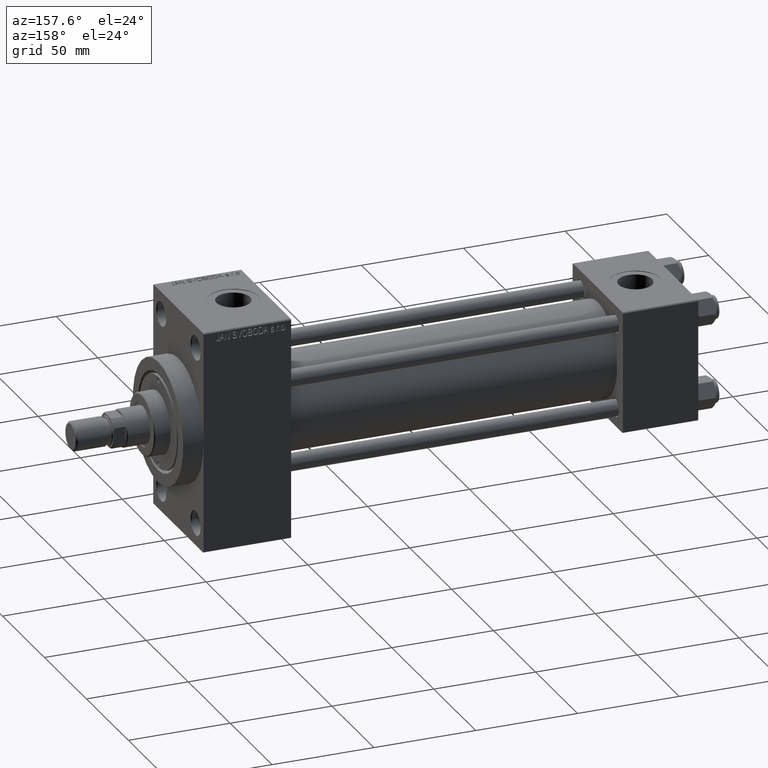
[diagram: clean part render]
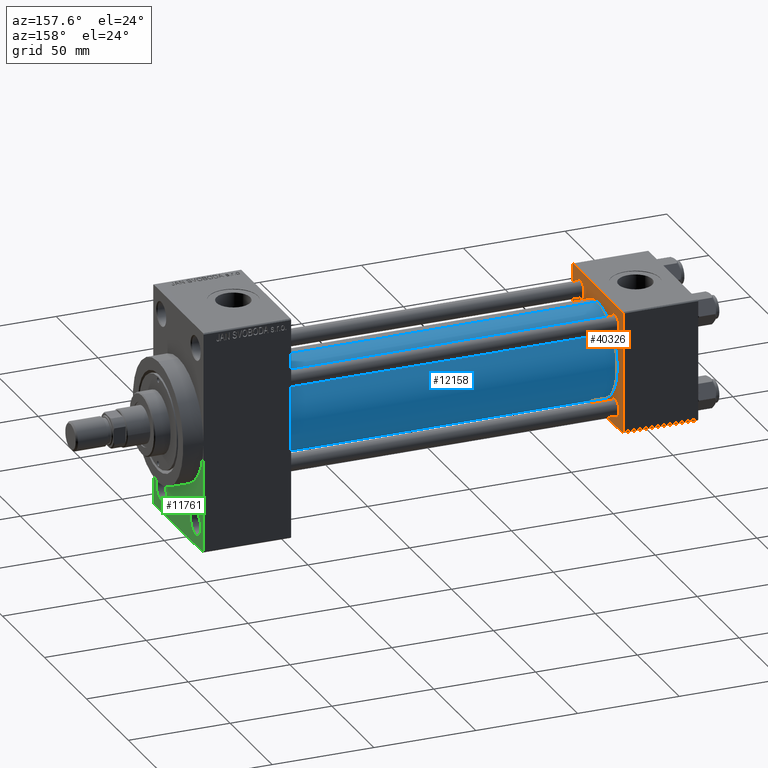
[diagram: same view with three faces highlighted in distinct colors, each labeled with its STEP entity id]
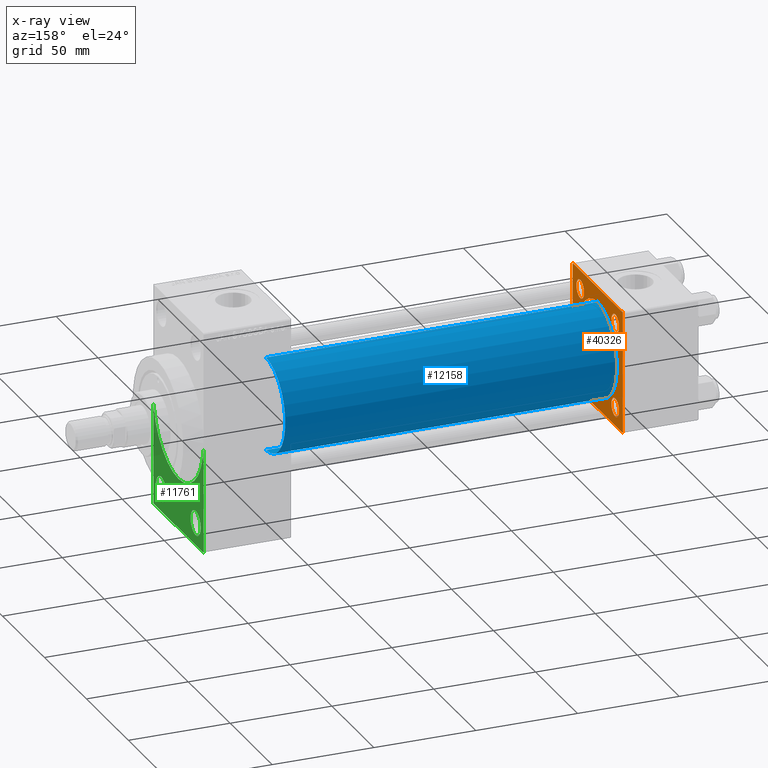
[diagram: x-ray of the same camera — body ghosted, the three highlighted faces saturated]
A machine part, auxiliary view with three faces highlighted in distinct colors.
The next image is the same camera in x-ray (body ghosted, the three faces saturated) — at least one of them is partly hidden behind the body in this view.
Their STEP definitions:

[orange] entity #40326 — the highlighted planar face has unit normal (-1, 0, 0).
#226 = VERTEX_POINT ( 'NONE', #12615 ) ;
#628 = DIRECTION ( 'NONE',  ( -1.000000000000000000, 0.000000000000000000, -0.000000000000000000 ) ) ;
#762 = CIRCLE ( 'NONE', #30923, 4.500000000000031974 ) ;
#1553 = EDGE_CURVE ( 'NONE', #35813, #36327, #17889, .T. ) ;
#1852 = VERTEX_POINT ( 'NONE', #34324 ) ;
#2105 = CARTESIAN_POINT ( 'NONE',  ( 37.00000000000000000, 29.99999999999999289, 30.00000000000000000 ) ) ;
#2478 = VECTOR ( 'NONE', #25453, 1000.000000000000000 ) ;
#3282 = EDGE_LOOP ( 'NONE', ( #15802, #40644 ) ) ;
#3363 = DIRECTION ( 'NONE',  ( 0.000000000000000000, 0.000000000000000000, -1.000000000000000000 ) ) ;
#3420 = CARTESIAN_POINT ( 'NONE',  ( 37.00000000000000711, -2.602085213965210642E-15, 0.000000000000000000 ) ) ;
#3861 = CARTESIAN_POINT ( 'NONE',  ( 37.00000000000000000, -30.00000000000000000, 29.99999999999999289 ) ) ;
#4104 = CARTESIAN_POINT ( 'NONE',  ( 37.00000000000000711, -2.602085213965210642E-15, 0.000000000000000000 ) ) ;
#4171 = ORIENTED_EDGE ( 'NONE', *, *, #21640, .T. ) ;
#4271 = FACE_BOUND ( 'NONE', #25519, .T. ) ;
#4456 = VERTEX_POINT ( 'NONE', #46131 ) ;
#4826 = EDGE_CURVE ( 'NONE', #33932, #15929, #13238, .T. ) ;
#5232 = EDGE_CURVE ( 'NONE', #37272, #1852, #21779, .T. ) ;
#5338 = CARTESIAN_POINT ( 'NONE',  ( 37.00000000000000000, 20.84999999999999787, -20.85000000000000142 ) ) ;
#5989 = CIRCLE ( 'NONE', #19928, 4.500000000000031974 ) ;
#6295 = DIRECTION ( 'NONE',  ( 0.000000000000000000, 0.000000000000000000, 1.000000000000000000 ) ) ;
#6924 = DIRECTION ( 'NONE',  ( 0.000000000000000000, -0.7071067811865474617, 0.7071067811865474617 ) ) ;
#7434 = DIRECTION ( 'NONE',  ( -1.000000000000000000, 0.000000000000000000, -0.000000000000000000 ) ) ;
#7546 = CARTESIAN_POINT ( 'NONE',  ( 37.00000000000000000, -30.00000000000000000, 29.49999999999999289 ) ) ;
#7735 = DIRECTION ( 'NONE',  ( 0.000000000000000000, 0.000000000000000000, 1.000000000000000000 ) ) ;
#7875 = CARTESIAN_POINT ( 'NONE',  ( 37.00000000000000000, 20.84999999999999787, -16.34999999999996945 ) ) ;
#7970 = ORIENTED_EDGE ( 'NONE', *, *, #47088, .T. ) ;
#8579 = DIRECTION ( 'NONE',  ( -1.000000000000000000, 0.000000000000000000, -0.000000000000000000 ) ) ;
#8581 = VECTOR ( 'NONE', #45571, 999.9999999999998863 ) ;
#8600 = ORIENTED_EDGE ( 'NONE', *, *, #5232, .F. ) ;
#9486 = CARTESIAN_POINT ( 'NONE',  ( 37.00000000000000000, 20.84999999999999787, -25.35000000000003340 ) ) ;
#10013 = EDGE_LOOP ( 'NONE', ( #31865, #24260, #8600, #20482, #16755, #36763, #22285, #19184 ) ) ;
#10676 = EDGE_CURVE ( 'NONE', #15780, #29314, #43568, .T. ) ;
#11189 = CARTESIAN_POINT ( 'NONE',  ( 37.00000000000000000, -30.00000000000000000, 29.49999999999999289 ) ) ;
#11269 = CARTESIAN_POINT ( 'NONE',  ( 37.00000000000000000, 29.49999999999999289, 30.00000000000000000 ) ) ;
#11770 = FACE_BOUND ( 'NONE', #3282, .T. ) ;
#11812 = CARTESIAN_POINT ( 'NONE',  ( 37.00000000000000000, 20.84999999999999787, 16.34999999999996945 ) ) ;
#12615 = CARTESIAN_POINT ( 'NONE',  ( 37.00000000000000000, -20.84999999999999076, 16.34999999999997300 ) ) ;
#12697 = ORIENTED_EDGE ( 'NONE', *, *, #43193, .T. ) ;
#12814 = VERTEX_POINT ( 'NONE', #38172 ) ;
#13238 = CIRCLE ( 'NONE', #14777, 23.00000000000000000 ) ;
#13991 = FACE_BOUND ( 'NONE', #24840, .T. ) ;
#14118 = DIRECTION ( 'NONE',  ( 0.000000000000000000, 0.000000000000000000, 1.000000000000000000 ) ) ;
#14196 = CARTESIAN_POINT ( 'NONE',  ( 37.00000000000000711, 2.146024240737016609E-16, -23.00000000000000000 ) ) ;
#14773 = LINE ( 'NONE', #3861, #2478 ) ;
#14777 = AXIS2_PLACEMENT_3D ( 'NONE', #3420, #21833, #18208 ) ;
#15176 = FACE_OUTER_BOUND ( 'NONE', #10013, .T. ) ;
#15642 = DIRECTION ( 'NONE',  ( -1.000000000000000000, 0.000000000000000000, -0.000000000000000000 ) ) ;
#15780 = VERTEX_POINT ( 'NONE', #16398 ) ;
#15802 = ORIENTED_EDGE ( 'NONE', *, *, #4826, .F. ) ;
#15929 = VERTEX_POINT ( 'NONE', #14196 ) ;
#16029 = VERTEX_POINT ( 'NONE', #11269 ) ;
#16232 = CARTESIAN_POINT ( 'NONE',  ( 37.00000000000000000, 20.84999999999999787, 20.85000000000000142 ) ) ;
#16398 = CARTESIAN_POINT ( 'NONE',  ( 37.00000000000000000, 20.84999999999999787, 25.35000000000003340 ) ) ;
#16409 = LINE ( 'NONE', #2105, #27542 ) ;
#16538 = LINE ( 'NONE', #31307, #38328 ) ;
#16587 = CARTESIAN_POINT ( 'NONE',  ( 37.00000000000000711, -2.602085213965210642E-15, 23.00000000000000000 ) ) ;
#16623 = AXIS2_PLACEMENT_3D ( 'NONE', #5338, #27641, #6295 ) ;
#16755 = ORIENTED_EDGE ( 'NONE', *, *, #33703, .T. ) ;
#17388 = CIRCLE ( 'NONE', #16623, 4.500000000000031974 ) ;
#17395 = CARTESIAN_POINT ( 'NONE',  ( 37.00000000000000000, -29.50000000000000000, -30.00000000000000711 ) ) ;
#17757 = CARTESIAN_POINT ( 'NONE',  ( 37.00000000000000000, 20.84999999999999787, -20.85000000000000142 ) ) ;
#17801 = CIRCLE ( 'NONE', #34024, 4.500000000000031974 ) ;
#17832 = VERTEX_POINT ( 'NONE', #17395 ) ;
#17889 = CIRCLE ( 'NONE', #39558, 4.500000000000031974 ) ;
#18155 = CARTESIAN_POINT ( 'NONE',  ( 37.00000000000000000, -30.00000000000000000, -29.50000000000001776 ) ) ;
#18208 = DIRECTION ( 'NONE',  ( 0.000000000000000000, 0.000000000000000000, 1.000000000000000000 ) ) ;
#18468 = EDGE_CURVE ( 'NONE', #39163, #1852, #26933, .T. ) ;
#19051 = PLANE ( 'NONE',  #36939 ) ;
#19184 = ORIENTED_EDGE ( 'NONE', *, *, #31793, .T. ) ;
#19308 = VECTOR ( 'NONE', #43959, 1000.000000000000000 ) ;
#19420 = EDGE_CURVE ( 'NONE', #12814, #31988, #44835, .T. ) ;
#19928 = AXIS2_PLACEMENT_3D ( 'NONE', #46496, #36314, #39951 ) ;
#20482 = ORIENTED_EDGE ( 'NONE', *, *, #44450, .T. ) ;
#20577 = EDGE_CURVE ( 'NONE', #31988, #26696, #14773, .T. ) ;
#20636 = EDGE_CURVE ( 'NONE', #15929, #33932, #31091, .T. ) ;
#20673 = CARTESIAN_POINT ( 'NONE',  ( 37.00000000000000000, -20.84999999999999076, -16.34999999999997300 ) ) ;
#21073 = CIRCLE ( 'NONE', #24189, 4.500000000000031974 ) ;
#21188 = ORIENTED_EDGE ( 'NONE', *, *, #27659, .T. ) ;
#21640 = EDGE_CURVE ( 'NONE', #29314, #15780, #21073, .T. ) ;
#21779 = LINE ( 'NONE', #36551, #23306 ) ;
#21833 = DIRECTION ( 'NONE',  ( 1.000000000000000000, -0.000000000000000000, 0.000000000000000000 ) ) ;
#22036 = DIRECTION ( 'NONE',  ( 0.000000000000000000, 0.000000000000000000, 1.000000000000000000 ) ) ;
#22285 = ORIENTED_EDGE ( 'NONE', *, *, #20577, .T. ) ;
#23306 = VECTOR ( 'NONE', #3363, 1000.000000000000000 ) ;
#23452 = CARTESIAN_POINT ( 'NONE',  ( 37.00000000000000000, 29.99999999999999289, 29.50000000000000000 ) ) ;
#24141 = VERTEX_POINT ( 'NONE', #20673 ) ;
#24152 = AXIS2_PLACEMENT_3D ( 'NONE', #4104, #44084, #7735 ) ;
#24189 = AXIS2_PLACEMENT_3D ( 'NONE', #37756, #36810, #22036 ) ;
#24260 = ORIENTED_EDGE ( 'NONE', *, *, #18468, .T. ) ;
#24840 = EDGE_LOOP ( 'NONE', ( #32988, #7970 ) ) ;
#25343 = LINE ( 'NONE', #40107, #36715 ) ;
#25453 = DIRECTION ( 'NONE',  ( 0.000000000000000000, 0.000000000000000000, -1.000000000000000000 ) ) ;
#25519 = EDGE_LOOP ( 'NONE', ( #4171, #29896 ) ) ;
#26696 = VERTEX_POINT ( 'NONE', #18155 ) ;
#26933 = LINE ( 'NONE', #27650, #8581 ) ;
#27542 = VECTOR ( 'NONE', #45715, 1000.000000000000000 ) ;
#27641 = DIRECTION ( 'NONE',  ( -1.000000000000000000, 0.000000000000000000, -0.000000000000000000 ) ) ;
#27650 = CARTESIAN_POINT ( 'NONE',  ( 37.00000000000000000, 29.99999999999999289, -29.50000000000000000 ) ) ;
#27659 = EDGE_CURVE ( 'NONE', #226, #28066, #32759, .T. ) ;
#28066 = VERTEX_POINT ( 'NONE', #44336 ) ;
#29016 = FACE_BOUND ( 'NONE', #42837, .T. ) ;
#29314 = VERTEX_POINT ( 'NONE', #11812 ) ;
#29896 = ORIENTED_EDGE ( 'NONE', *, *, #10676, .T. ) ;
#29946 = DIRECTION ( 'NONE',  ( -0.000000000000000000, 0.000000000000000000, 1.000000000000000000 ) ) ;
#30418 = AXIS2_PLACEMENT_3D ( 'NONE', #16232, #41890, #42134 ) ;
#30666 = CARTESIAN_POINT ( 'NONE',  ( 37.00000000000000000, 0.000000000000000000, 0.000000000000000000 ) ) ;
#30862 = CARTESIAN_POINT ( 'NONE',  ( 37.00000000000000000, -20.84999999999999076, 20.85000000000000497 ) ) ;
#30923 = AXIS2_PLACEMENT_3D ( 'NONE', #44946, #628, #37694 ) ;
#31091 = CIRCLE ( 'NONE', #24152, 23.00000000000000000 ) ;
#31307 = CARTESIAN_POINT ( 'NONE',  ( 37.00000000000000000, -29.50000000000001066, -30.00000000000000711 ) ) ;
#31793 = EDGE_CURVE ( 'NONE', #26696, #17832, #16538, .T. ) ;
#31865 = ORIENTED_EDGE ( 'NONE', *, *, #43341, .F. ) ;
#31988 = VERTEX_POINT ( 'NONE', #7546 ) ;
#32336 = CARTESIAN_POINT ( 'NONE',  ( 37.00000000000000000, 29.99999999999999289, -30.00000000000000000 ) ) ;
#32759 = CIRCLE ( 'NONE', #38948, 4.500000000000031974 ) ;
#32988 = ORIENTED_EDGE ( 'NONE', *, *, #1553, .T. ) ;
#33703 = EDGE_CURVE ( 'NONE', #16029, #12814, #16409, .T. ) ;
#33932 = VERTEX_POINT ( 'NONE', #16587 ) ;
#34024 = AXIS2_PLACEMENT_3D ( 'NONE', #40603, #7434, #43287 ) ;
#34324 = CARTESIAN_POINT ( 'NONE',  ( 37.00000000000000000, 29.99999999999999289, -29.50000000000000000 ) ) ;
#35813 = VERTEX_POINT ( 'NONE', #9486 ) ;
#36314 = DIRECTION ( 'NONE',  ( -1.000000000000000000, 0.000000000000000000, -0.000000000000000000 ) ) ;
#36327 = VERTEX_POINT ( 'NONE', #7875 ) ;
#36466 = VECTOR ( 'NONE', #44125, 1000.000000000000114 ) ;
#36551 = CARTESIAN_POINT ( 'NONE',  ( 37.00000000000000000, 29.99999999999999289, 30.00000000000000000 ) ) ;
#36715 = VECTOR ( 'NONE', #6924, 1000.000000000000114 ) ;
#36763 = ORIENTED_EDGE ( 'NONE', *, *, #19420, .T. ) ;
#36810 = DIRECTION ( 'NONE',  ( -1.000000000000000000, 0.000000000000000000, -0.000000000000000000 ) ) ;
#36939 = AXIS2_PLACEMENT_3D ( 'NONE', #30666, #15642, #29946 ) ;
#37071 = EDGE_CURVE ( 'NONE', #4456, #24141, #5989, .T. ) ;
#37272 = VERTEX_POINT ( 'NONE', #23452 ) ;
#37694 = DIRECTION ( 'NONE',  ( 0.000000000000000000, 0.000000000000000000, 1.000000000000000000 ) ) ;
#37756 = CARTESIAN_POINT ( 'NONE',  ( 37.00000000000000000, 20.84999999999999787, 20.85000000000000142 ) ) ;
#38172 = CARTESIAN_POINT ( 'NONE',  ( 37.00000000000000000, -29.49999999999998579, 29.99999999999999289 ) ) ;
#38328 = VECTOR ( 'NONE', #46088, 1000.000000000000114 ) ;
#38948 = AXIS2_PLACEMENT_3D ( 'NONE', #30862, #8579, #45163 ) ;
#39163 = VERTEX_POINT ( 'NONE', #41121 ) ;
#39558 = AXIS2_PLACEMENT_3D ( 'NONE', #17757, #47308, #14118 ) ;
#39951 = DIRECTION ( 'NONE',  ( 0.000000000000000000, 0.000000000000000000, 1.000000000000000000 ) ) ;
#40107 = CARTESIAN_POINT ( 'NONE',  ( 37.00000000000000000, 29.49999999999999289, 30.00000000000000000 ) ) ;
#40326 = ADVANCED_FACE ( 'NONE', ( #47178, #13991, #29016, #4271, #11770, #15176 ), #19051, .F. ) ;
#40562 = ORIENTED_EDGE ( 'NONE', *, *, #37071, .T. ) ;
#40603 = CARTESIAN_POINT ( 'NONE',  ( 37.00000000000000000, -20.84999999999999076, -20.85000000000000497 ) ) ;
#40644 = ORIENTED_EDGE ( 'NONE', *, *, #20636, .F. ) ;
#41121 = CARTESIAN_POINT ( 'NONE',  ( 37.00000000000000000, 29.49999999999997868, -30.00000000000000000 ) ) ;
#41890 = DIRECTION ( 'NONE',  ( -1.000000000000000000, 0.000000000000000000, -0.000000000000000000 ) ) ;
#42134 = DIRECTION ( 'NONE',  ( 0.000000000000000000, 0.000000000000000000, 1.000000000000000000 ) ) ;
#42837 = EDGE_LOOP ( 'NONE', ( #21188, #45472 ) ) ;
#43193 = EDGE_CURVE ( 'NONE', #24141, #4456, #17801, .T. ) ;
#43232 = EDGE_CURVE ( 'NONE', #28066, #226, #762, .T. ) ;
#43287 = DIRECTION ( 'NONE',  ( 0.000000000000000000, 0.000000000000000000, 1.000000000000000000 ) ) ;
#43341 = EDGE_CURVE ( 'NONE', #39163, #17832, #43717, .T. ) ;
#43568 = CIRCLE ( 'NONE', #30418, 4.500000000000031974 ) ;
#43717 = LINE ( 'NONE', #32336, #19308 ) ;
#43959 = DIRECTION ( 'NONE',  ( 0.000000000000000000, -1.000000000000000000, -1.156482317317871725E-16 ) ) ;
#44084 = DIRECTION ( 'NONE',  ( 1.000000000000000000, -0.000000000000000000, 0.000000000000000000 ) ) ;
#44125 = DIRECTION ( 'NONE',  ( -0.000000000000000000, -0.7071067811865474617, -0.7071067811865474617 ) ) ;
#44336 = CARTESIAN_POINT ( 'NONE',  ( 37.00000000000000000, -20.84999999999999076, 25.35000000000003695 ) ) ;
#44450 = EDGE_CURVE ( 'NONE', #37272, #16029, #25343, .T. ) ;
#44835 = LINE ( 'NONE', #11189, #36466 ) ;
#44946 = CARTESIAN_POINT ( 'NONE',  ( 37.00000000000000000, -20.84999999999999076, 20.85000000000000497 ) ) ;
#45163 = DIRECTION ( 'NONE',  ( 0.000000000000000000, 0.000000000000000000, 1.000000000000000000 ) ) ;
#45472 = ORIENTED_EDGE ( 'NONE', *, *, #43232, .T. ) ;
#45571 = DIRECTION ( 'NONE',  ( -0.000000000000000000, 0.7071067811865574537, 0.7071067811865376918 ) ) ;
#45715 = DIRECTION ( 'NONE',  ( 0.000000000000000000, -1.000000000000000000, -1.156482317317871725E-16 ) ) ;
#46088 = DIRECTION ( 'NONE',  ( 0.000000000000000000, 0.7071067811865474617, -0.7071067811865474617 ) ) ;
#46131 = CARTESIAN_POINT ( 'NONE',  ( 37.00000000000000000, -20.84999999999999076, -25.35000000000003695 ) ) ;
#46313 = EDGE_LOOP ( 'NONE', ( #40562, #12697 ) ) ;
#46496 = CARTESIAN_POINT ( 'NONE',  ( 37.00000000000000000, -20.84999999999999076, -20.85000000000000497 ) ) ;
#47088 = EDGE_CURVE ( 'NONE', #36327, #35813, #17388, .T. ) ;
#47178 = FACE_BOUND ( 'NONE', #46313, .T. ) ;
#47308 = DIRECTION ( 'NONE',  ( -1.000000000000000000, 0.000000000000000000, -0.000000000000000000 ) ) ;

[blue] entity #12158 — the highlighted cylindrical surface (partial cylindrical patch) has radius 23 mm, axis along (-1, -0, -0).
#3929 = VERTEX_POINT ( 'NONE', #35302 ) ;
#4104 = CARTESIAN_POINT ( 'NONE',  ( 37.00000000000000711, -2.602085213965210642E-15, 0.000000000000000000 ) ) ;
#5329 = CARTESIAN_POINT ( 'NONE',  ( 200.0000000000000000, 2.146024240737016609E-16, -23.00000000000000000 ) ) ;
#5769 = EDGE_LOOP ( 'NONE', ( #15647, #8231, #42715, #10093 ) ) ;
#6043 = EDGE_CURVE ( 'NONE', #3929, #15929, #44828, .T. ) ;
#7735 = DIRECTION ( 'NONE',  ( 0.000000000000000000, 0.000000000000000000, 1.000000000000000000 ) ) ;
#8231 = ORIENTED_EDGE ( 'NONE', *, *, #6043, .T. ) ;
#10093 = ORIENTED_EDGE ( 'NONE', *, *, #30888, .F. ) ;
#11640 = DIRECTION ( 'NONE',  ( -1.000000000000000000, -0.000000000000000000, -0.000000000000000000 ) ) ;
#12158 = ADVANCED_FACE ( 'NONE', ( #17319 ), #25316, .T. ) ;
#13778 = DIRECTION ( 'NONE',  ( 1.000000000000000000, 0.000000000000000000, 0.000000000000000000 ) ) ;
#14196 = CARTESIAN_POINT ( 'NONE',  ( 37.00000000000000711, 2.146024240737016609E-16, -23.00000000000000000 ) ) ;
#14259 = CARTESIAN_POINT ( 'NONE',  ( 200.0000000000000000, -2.602085213965210642E-15, 0.000000000000000000 ) ) ;
#15647 = ORIENTED_EDGE ( 'NONE', *, *, #32410, .F. ) ;
#15929 = VERTEX_POINT ( 'NONE', #14196 ) ;
#16587 = CARTESIAN_POINT ( 'NONE',  ( 37.00000000000000711, -2.602085213965210642E-15, 23.00000000000000000 ) ) ;
#17299 = LINE ( 'NONE', #32066, #42113 ) ;
#17319 = FACE_OUTER_BOUND ( 'NONE', #5769, .T. ) ;
#18244 = CIRCLE ( 'NONE', #25993, 23.00000000000000000 ) ;
#20636 = EDGE_CURVE ( 'NONE', #15929, #33932, #31091, .T. ) ;
#24152 = AXIS2_PLACEMENT_3D ( 'NONE', #4104, #44084, #7735 ) ;
#25071 = CARTESIAN_POINT ( 'NONE',  ( 200.0000000000000000, -2.602085213965210642E-15, 0.000000000000000000 ) ) ;
#25316 = CYLINDRICAL_SURFACE ( 'NONE', #39009, 23.00000000000000000 ) ;
#25993 = AXIS2_PLACEMENT_3D ( 'NONE', #14259, #13778, #28797 ) ;
#26112 = VERTEX_POINT ( 'NONE', #37852 ) ;
#28797 = DIRECTION ( 'NONE',  ( 0.000000000000000000, 0.000000000000000000, -1.000000000000000000 ) ) ;
#30888 = EDGE_CURVE ( 'NONE', #26112, #33932, #17299, .T. ) ;
#31091 = CIRCLE ( 'NONE', #24152, 23.00000000000000000 ) ;
#32066 = CARTESIAN_POINT ( 'NONE',  ( 200.0000000000000000, -2.602085213965210642E-15, 23.00000000000000000 ) ) ;
#32329 = DIRECTION ( 'NONE',  ( -1.000000000000000000, -0.000000000000000000, -0.000000000000000000 ) ) ;
#32410 = EDGE_CURVE ( 'NONE', #3929, #26112, #18244, .T. ) ;
#33932 = VERTEX_POINT ( 'NONE', #16587 ) ;
#35302 = CARTESIAN_POINT ( 'NONE',  ( 200.0000000000000000, 2.146024240737016609E-16, -23.00000000000000000 ) ) ;
#35460 = DIRECTION ( 'NONE',  ( -1.000000000000000000, -0.000000000000000000, -0.000000000000000000 ) ) ;
#37852 = CARTESIAN_POINT ( 'NONE',  ( 200.0000000000000000, -2.602085213965210642E-15, 23.00000000000000000 ) ) ;
#39009 = AXIS2_PLACEMENT_3D ( 'NONE', #25071, #32329, #39840 ) ;
#39840 = DIRECTION ( 'NONE',  ( 0.000000000000000000, 0.000000000000000000, 1.000000000000000000 ) ) ;
#42113 = VECTOR ( 'NONE', #35460, 1000.000000000000000 ) ;
#42715 = ORIENTED_EDGE ( 'NONE', *, *, #20636, .T. ) ;
#44084 = DIRECTION ( 'NONE',  ( 1.000000000000000000, -0.000000000000000000, 0.000000000000000000 ) ) ;
#44828 = LINE ( 'NONE', #5329, #46539 ) ;
#46539 = VECTOR ( 'NONE', #11640, 1000.000000000000000 ) ;

[green] entity #11761 — the highlighted planar face has unit normal (-1, 0, 0).
#563 = EDGE_CURVE ( 'NONE', #32206, #18761, #8574, .T. ) ;
#976 = EDGE_CURVE ( 'NONE', #37480, #32206, #17090, .T. ) ;
#1837 = EDGE_LOOP ( 'NONE', ( #19903, #20186 ) ) ;
#1984 = ORIENTED_EDGE ( 'NONE', *, *, #19275, .T. ) ;
#2762 = EDGE_CURVE ( 'NONE', #12894, #13477, #31176, .T. ) ;
#6911 = CARTESIAN_POINT ( 'NONE',  ( 243.0000000000000000, 29.49999999999996803, -54.49999999999999289 ) ) ;
#7139 = DIRECTION ( 'NONE',  ( 0.000000000000000000, 0.000000000000000000, -1.000000000000000000 ) ) ;
#7302 = CARTESIAN_POINT ( 'NONE',  ( 243.0000000000000000, -20.50000000000000000, -49.49999999999997158 ) ) ;
#8100 = AXIS2_PLACEMENT_3D ( 'NONE', #40809, #11738, #22653 ) ;
#8574 = CIRCLE ( 'NONE', #18643, 30.00000000000000000 ) ;
#8880 = VECTOR ( 'NONE', #9239, 1000.000000000000000 ) ;
#9227 = DIRECTION ( 'NONE',  ( 1.000000000000000000, 0.000000000000000000, 0.000000000000000000 ) ) ;
#9239 = DIRECTION ( 'NONE',  ( 0.000000000000000000, 0.000000000000000000, -1.000000000000000000 ) ) ;
#9946 = ORIENTED_EDGE ( 'NONE', *, *, #15296, .T. ) ;
#10593 = PLANE ( 'NONE',  #43612 ) ;
#11248 = DIRECTION ( 'NONE',  ( 1.000000000000000000, 0.000000000000000000, 0.000000000000000000 ) ) ;
#11401 = CARTESIAN_POINT ( 'NONE',  ( 243.0000000000000000, 29.99999999999999645, -54.49999999999999289 ) ) ;
#11738 = DIRECTION ( 'NONE',  ( -1.000000000000000000, 0.000000000000000000, -0.000000000000000000 ) ) ;
#11761 = ADVANCED_FACE ( 'NONE', ( #47407, #29005, #32386 ), #10593, .F. ) ;
#12526 = CARTESIAN_POINT ( 'NONE',  ( 243.0000000000000000, -30.00000000000000000, 54.50000000000000000 ) ) ;
#12677 = LINE ( 'NONE', #20174, #24079 ) ;
#12773 = ORIENTED_EDGE ( 'NONE', *, *, #563, .F. ) ;
#12894 = VERTEX_POINT ( 'NONE', #6911 ) ;
#12993 = DIRECTION ( 'NONE',  ( -0.000000000000000000, 0.7071067811865672237, 0.7071067811865279218 ) ) ;
#13477 = VERTEX_POINT ( 'NONE', #25213 ) ;
#14558 = CARTESIAN_POINT ( 'NONE',  ( 243.0000000000000000, -30.00000000000000000, -54.00000000000001421 ) ) ;
#14912 = EDGE_CURVE ( 'NONE', #12894, #32587, #16630, .T. ) ;
#15296 = EDGE_CURVE ( 'NONE', #17221, #16393, #29062, .T. ) ;
#16393 = VERTEX_POINT ( 'NONE', #43705 ) ;
#16630 = LINE ( 'NONE', #35267, #42178 ) ;
#17008 = DIRECTION ( 'NONE',  ( -1.000000000000000000, 0.000000000000000000, -0.000000000000000000 ) ) ;
#17090 = CIRCLE ( 'NONE', #20956, 30.00000000000000000 ) ;
#17221 = VERTEX_POINT ( 'NONE', #44186 ) ;
#18643 = AXIS2_PLACEMENT_3D ( 'NONE', #29650, #11248, #7139 ) ;
#18761 = VERTEX_POINT ( 'NONE', #37040 ) ;
#19079 = DIRECTION ( 'NONE',  ( 0.000000000000000000, 0.000000000000000000, -1.000000000000000000 ) ) ;
#19275 = EDGE_CURVE ( 'NONE', #29770, #13477, #12677, .T. ) ;
#19903 = ORIENTED_EDGE ( 'NONE', *, *, #26301, .T. ) ;
#20174 = CARTESIAN_POINT ( 'NONE',  ( 243.0000000000000000, -29.50000000000002842, -54.50000000000000000 ) ) ;
#20186 = ORIENTED_EDGE ( 'NONE', *, *, #40187, .T. ) ;
#20956 = AXIS2_PLACEMENT_3D ( 'NONE', #41193, #9227, #31975 ) ;
#21506 = DIRECTION ( 'NONE',  ( -1.000000000000000000, 0.000000000000000000, -0.000000000000000000 ) ) ;
#22653 = DIRECTION ( 'NONE',  ( 0.000000000000000000, 0.000000000000000000, 1.000000000000000000 ) ) ;
#22713 = CARTESIAN_POINT ( 'NONE',  ( 243.0000000000000000, 29.99999999999999645, -53.99999999999999289 ) ) ;
#23408 = ORIENTED_EDGE ( 'NONE', *, *, #30414, .T. ) ;
#23845 = ORIENTED_EDGE ( 'NONE', *, *, #2762, .F. ) ;
#24079 = VECTOR ( 'NONE', #27458, 1000.000000000000000 ) ;
#24759 = CARTESIAN_POINT ( 'NONE',  ( 243.0000000000000000, -20.50000000000000000, -43.50000000000000000 ) ) ;
#25213 = CARTESIAN_POINT ( 'NONE',  ( 243.0000000000000000, -29.50000000000002842, -54.50000000000000000 ) ) ;
#25373 = DIRECTION ( 'NONE',  ( -1.000000000000000000, 0.000000000000000000, -0.000000000000000000 ) ) ;
#26301 = EDGE_CURVE ( 'NONE', #28912, #42705, #44306, .T. ) ;
#27458 = DIRECTION ( 'NONE',  ( 0.000000000000000000, 0.7071067811865352493, -0.7071067811865597852 ) ) ;
#27657 = CARTESIAN_POINT ( 'NONE',  ( 243.0000000000000000, 29.99999999999999645, 54.49999999999999289 ) ) ;
#28185 = CARTESIAN_POINT ( 'NONE',  ( 243.0000000000000000, 20.50000000000000000, -43.50000000000000000 ) ) ;
#28192 = LINE ( 'NONE', #12526, #31241 ) ;
#28770 = CARTESIAN_POINT ( 'NONE',  ( 243.0000000000000000, -20.50000000000000000, -43.50000000000000000 ) ) ;
#28912 = VERTEX_POINT ( 'NONE', #7302 ) ;
#29005 = FACE_BOUND ( 'NONE', #34002, .T. ) ;
#29062 = CIRCLE ( 'NONE', #40656, 5.999999999999977796 ) ;
#29473 = DIRECTION ( 'NONE',  ( 0.000000000000000000, 0.000000000000000000, 1.000000000000000000 ) ) ;
#29650 = CARTESIAN_POINT ( 'NONE',  ( 243.0000000000000000, 0.000000000000000000, 0.000000000000000000 ) ) ;
#29770 = VERTEX_POINT ( 'NONE', #14558 ) ;
#30414 = EDGE_CURVE ( 'NONE', #16393, #17221, #31304, .T. ) ;
#30618 = ORIENTED_EDGE ( 'NONE', *, *, #45414, .T. ) ;
#30740 = CIRCLE ( 'NONE', #39256, 5.999999999999977796 ) ;
#30880 = CARTESIAN_POINT ( 'NONE',  ( 243.0000000000000000, -30.00000000000000000, 0.000000000000000000 ) ) ;
#31176 = LINE ( 'NONE', #11401, #31735 ) ;
#31241 = VECTOR ( 'NONE', #19079, 1000.000000000000000 ) ;
#31304 = CIRCLE ( 'NONE', #8100, 5.999999999999977796 ) ;
#31735 = VECTOR ( 'NONE', #38926, 1000.000000000000000 ) ;
#31975 = DIRECTION ( 'NONE',  ( 0.000000000000000000, 0.000000000000000000, -1.000000000000000000 ) ) ;
#32206 = VERTEX_POINT ( 'NONE', #37064 ) ;
#32386 = FACE_OUTER_BOUND ( 'NONE', #45687, .T. ) ;
#32587 = VERTEX_POINT ( 'NONE', #22713 ) ;
#34002 = EDGE_LOOP ( 'NONE', ( #23408, #9946 ) ) ;
#35267 = CARTESIAN_POINT ( 'NONE',  ( 243.0000000000000000, 29.99999999999999645, -53.99999999999999289 ) ) ;
#35505 = ORIENTED_EDGE ( 'NONE', *, *, #14912, .T. ) ;
#36595 = AXIS2_PLACEMENT_3D ( 'NONE', #24759, #17008, #46557 ) ;
#37040 = CARTESIAN_POINT ( 'NONE',  ( 243.0000000000000000, 30.00000000000000000, 0.000000000000000000 ) ) ;
#37064 = CARTESIAN_POINT ( 'NONE',  ( 243.0000000000000000, 3.673940397442059178E-15, -30.00000000000000000 ) ) ;
#37480 = VERTEX_POINT ( 'NONE', #30880 ) ;
#38720 = ORIENTED_EDGE ( 'NONE', *, *, #43932, .F. ) ;
#38926 = DIRECTION ( 'NONE',  ( 0.000000000000000000, -1.000000000000000000, -1.156482317317871478E-16 ) ) ;
#39256 = AXIS2_PLACEMENT_3D ( 'NONE', #28770, #21506, #29473 ) ;
#40187 = EDGE_CURVE ( 'NONE', #42705, #28912, #30740, .T. ) ;
#40656 = AXIS2_PLACEMENT_3D ( 'NONE', #28185, #42958, #42230 ) ;
#40809 = CARTESIAN_POINT ( 'NONE',  ( 243.0000000000000000, 20.50000000000000000, -43.50000000000000000 ) ) ;
#41072 = ORIENTED_EDGE ( 'NONE', *, *, #976, .F. ) ;
#41193 = CARTESIAN_POINT ( 'NONE',  ( 243.0000000000000000, 0.000000000000000000, 0.000000000000000000 ) ) ;
#42178 = VECTOR ( 'NONE', #12993, 1000.000000000000000 ) ;
#42230 = DIRECTION ( 'NONE',  ( 0.000000000000000000, 0.000000000000000000, 1.000000000000000000 ) ) ;
#42705 = VERTEX_POINT ( 'NONE', #47717 ) ;
#42958 = DIRECTION ( 'NONE',  ( -1.000000000000000000, 0.000000000000000000, -0.000000000000000000 ) ) ;
#43280 = DIRECTION ( 'NONE',  ( -0.000000000000000000, 0.000000000000000000, 1.000000000000000000 ) ) ;
#43612 = AXIS2_PLACEMENT_3D ( 'NONE', #46928, #25373, #43280 ) ;
#43705 = CARTESIAN_POINT ( 'NONE',  ( 243.0000000000000000, 20.50000000000000000, -49.49999999999997158 ) ) ;
#43932 = EDGE_CURVE ( 'NONE', #18761, #32587, #46063, .T. ) ;
#44186 = CARTESIAN_POINT ( 'NONE',  ( 243.0000000000000000, 20.50000000000000000, -37.50000000000002132 ) ) ;
#44306 = CIRCLE ( 'NONE', #36595, 5.999999999999977796 ) ;
#45414 = EDGE_CURVE ( 'NONE', #37480, #29770, #28192, .T. ) ;
#45687 = EDGE_LOOP ( 'NONE', ( #30618, #1984, #23845, #35505, #38720, #12773, #41072 ) ) ;
#46063 = LINE ( 'NONE', #27657, #8880 ) ;
#46557 = DIRECTION ( 'NONE',  ( 0.000000000000000000, 0.000000000000000000, 1.000000000000000000 ) ) ;
#46928 = CARTESIAN_POINT ( 'NONE',  ( 243.0000000000000000, 0.000000000000000000, 0.000000000000000000 ) ) ;
#47407 = FACE_BOUND ( 'NONE', #1837, .T. ) ;
#47717 = CARTESIAN_POINT ( 'NONE',  ( 243.0000000000000000, -20.50000000000000000, -37.50000000000002132 ) ) ;